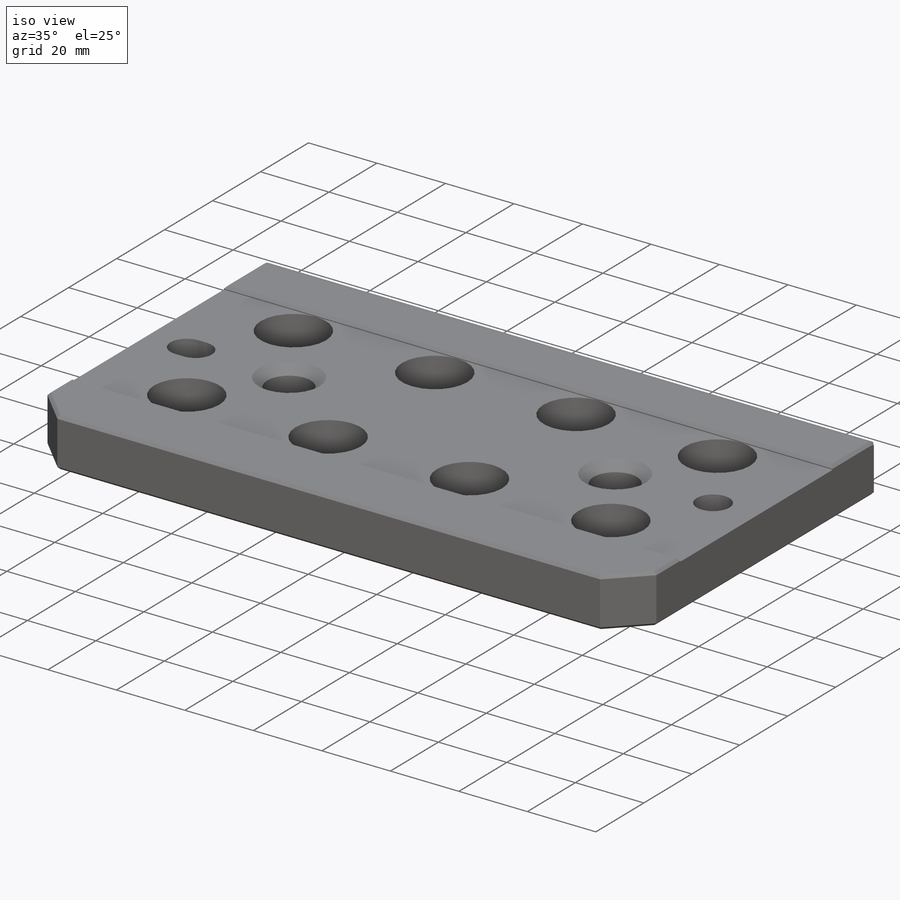
[diagram: iso view]
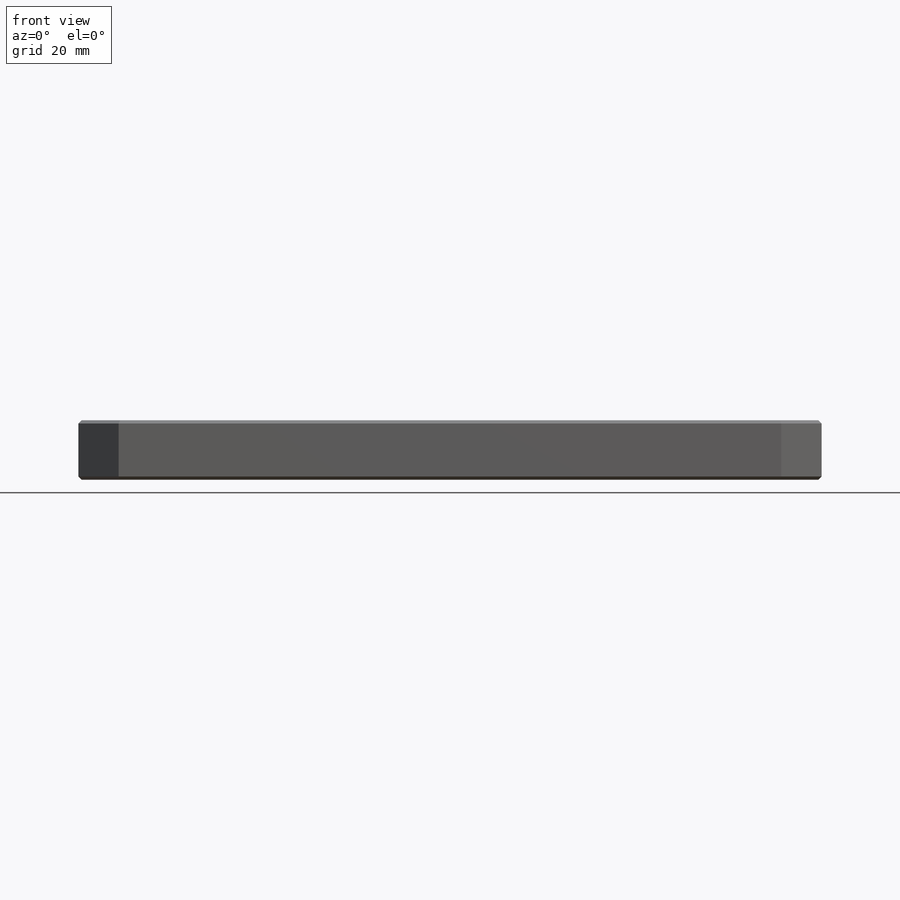
[diagram: front view]
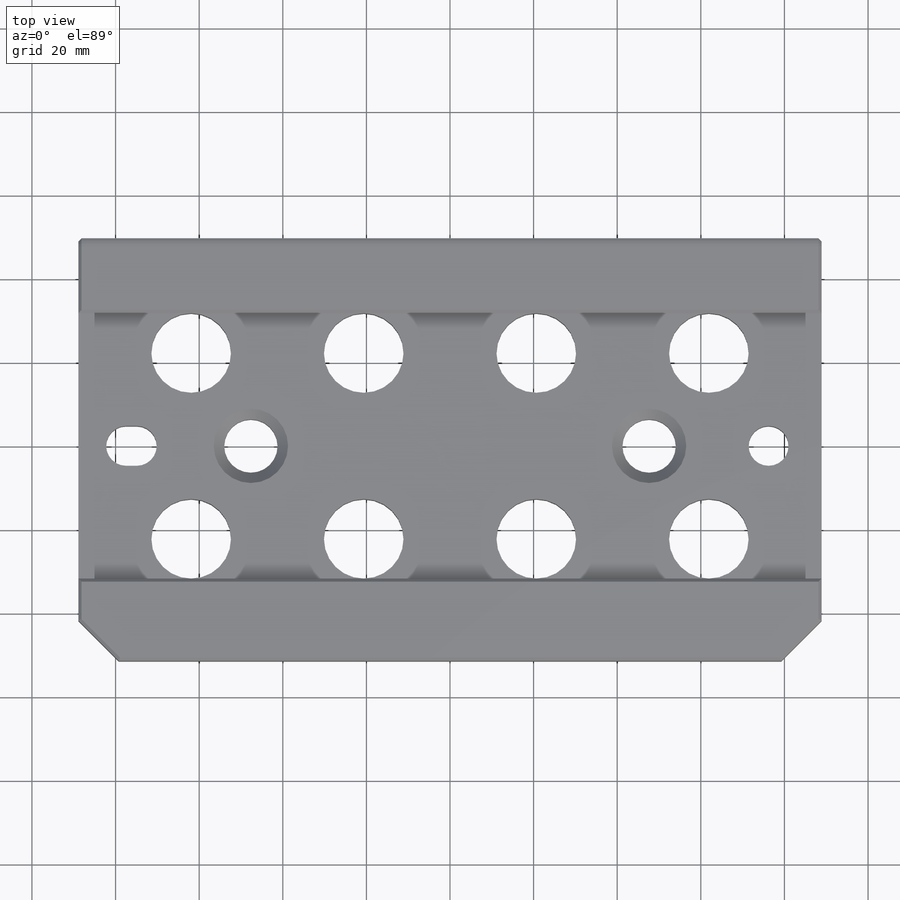
[diagram: top view]
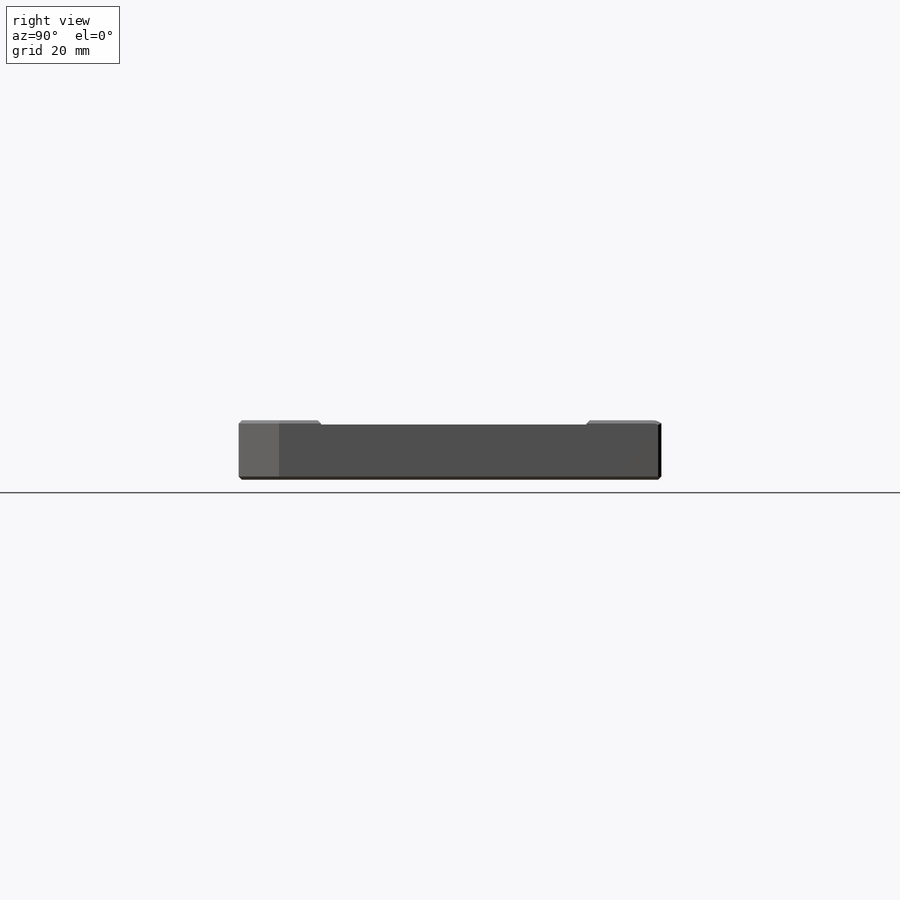
[diagram: right view]
SOLIDWORKS PART (.sldprt)
format: sldprt  version: not decoded by parser v0  size: 866,304 bytes
history: native  units: mm
features: sketch x23, chamfer x10, hole x7, cut_extrude x7, extrude x2, material x1 + 1 further entry (+13 scaffold rows collapsed)
feature tree (64):
  scaffold x13  (default folders/planes/origin — collapsed)
  material  "17-4 PH SSTL, H 1150"
  "Origin"  ID=-1
  sketch  "Sketch1"  dims[D1=18.5166mm D2=95.25mm D3=3.81mm]
  extrude  "Extrude1"  Depth=177.8mm
  sketch  "Sketch10"  dims[D1=0.762mm D2=2.032mm]
  extrude  "Extrude5"  [1 undecoded]
  hole  "3/4 (0.75) Diameter Hole1"  Diameter=19.05mm Depth=18.5166mm
  sketch  "Sketch5"  dims[c1.D1=41.275mm c1.D2=25.4mm c1.D3=44.45mm c2.D2=22.225mm]
  sketch  "Sketch4"  dims[hole-wizard template sketch: 60 standard entries collapsed; hole parameters kept: c18.Thru Hole Depth=18.5166mm]
  sketch  "Sketch6"  dims[c1.D1=15.875mm c1.D2=15.875mm c1.D3=25.4mm c2.D2=81.534mm c2.D1=31.75mm c3.D2=31.75mm]
  cut_extrude  "Extrude2"  Depth=1.016mm
  chamfer  "Chamfer10"  Distance=9.652mm Angle=45deg
  sketch  "Sketch35"  dims[D1=14.224mm]
  cut_extrude  "Extrude11"  [1 undecoded]
  hole  "3/8 (0.375) Diameter Hole1"  Diameter=9.54278mm Depth=14.224mm
  sketch  "Sketch18"  dims[D1=49.657mm D2=152.4mm]
  sketch  "Sketch17"  dims[hole-wizard template sketch: 55 standard entries collapsed; hole parameters kept: c17.Thru Hole Depth=14.224mm c17.Near C'Sink Dia.=14.224mm c17.D4=~3.666174mm c17.Near C'Sink Angle=90.0deg]
  sketch  "Sketch19"  dims[c1.D1=152.4mm c1.D2=2.54mm c2.D1=152.4mm]
  cut_extrude  "Extrude8"  [1 undecoded]
  chamfer  "Chamfer13"  Distance=2.286mm Angle=45deg
  hole  "1/2 (0.5) Diameter Hole4"  Diameter=12.7508mm Depth=13.208mm
  sketch  "Sketch27"  dims[D1=95.25mm D2=47.625mm D3=22.225mm]
  sketch  "Sketch26"  dims[hole-wizard template sketch: 46 standard entries collapsed; hole parameters kept: c15.Thru Hole Dia.=12.7508mm c15.Thru Hole Depth=13.208mm c15.Near C'Sink Dia.=17.78mm c15.D4=~3.666174mm c15.Near C'Sink Angle=90.0deg c15.Far C'Sink Dia.=17.78mm c15.D6=~9.919017mm c15.Far C'Sink Angle=90.0deg]
  sketch  "Sketch28"  dims[c1.D1=101.092mm c2.D1=1.01deg c2.D2=~11.68654mm]
  cut_extrude  "Extrude9"  [1 undecoded]
  hole  "3/8 (0.375) Diameter Hole2"  Diameter=9.54278mm Depth=11.720542mm
  sketch  "Sketch30"  dims[c1.D1=21.9075mm c1.D2=152.4mm c2.D1=22.5171mm]
  sketch  "Sketch29"  dims[hole-wizard template sketch: 55 standard entries collapsed; hole parameters kept: c17.Thru Hole Depth=~11.720542mm c17.Near C'Sink Dia.=14.224mm c17.D4=~3.666174mm c17.Near C'Sink Angle=90.0deg]
  sketch  "Sketch31"  dims[D1=2.54mm]
  cut_extrude  "Extrude10"  [1 undecoded]
  chamfer  "Chamfer14"  Distance=2.286mm Angle=45deg
  hole  "1/2 (0.5) Diameter Hole5"  Diameter=12.7mm Depth=10.706363mm
  sketch  "Sketch34"  dims[D1=95.25mm D2=22.225mm]
  sketch  "Sketch33"  dims[hole-wizard template sketch: 46 standard entries collapsed; hole parameters kept: c15.Thru Hole Dia.=12.7mm c15.Thru Hole Depth=~10.706363mm c15.Near C'Sink Dia.=13.97mm c15.D4=~3.666174mm c15.Near C'Sink Angle=90.0deg c15.Far C'Sink Dia.=19.05mm c15.D6=~9.919017mm c15.Far C'Sink Angle=90.0deg]
  sketch  "Sketch36"  dims[c1.D1=101.092mm c2.D1=1.01deg c2.D2=~16.76908mm]
  cut_extrude  "Extrude12"  [1 undecoded]
  hole  "3/8 (0.375) Diameter Hole3"  Diameter=9.54278mm Depth=18.512597mm
  sketch  "Sketch38"  dims[D1=152.4mm D2=~21.96846mm]
  sketch  "Sketch37"  dims[hole-wizard template sketch: 55 standard entries collapsed; hole parameters kept: c17.Thru Hole Depth=~18.512597mm c17.Near C'Sink Dia.=14.224mm c17.D4=~3.666174mm c17.Near C'Sink Angle=90.0deg]
  sketch  "Sketch39"  dims[D1=2.54mm]
  cut_extrude  "Extrude13"  [1 undecoded]
  chamfer  "Chamfer15"  Distance=2.286mm Angle=45deg
  hole  "1/2 (0.5) Diameter Hole6"  Diameter=12.7508mm Depth=17.499473mm
  sketch  "Sketch41"  dims[D1=95.25mm D2=22.225mm]
  sketch  "Sketch40"  dims[hole-wizard template sketch: 46 standard entries collapsed; hole parameters kept: c15.Thru Hole Dia.=12.7508mm c15.Thru Hole Depth=~17.499473mm c15.Near C'Sink Dia.=17.78mm c15.D4=~3.666174mm c15.Near C'Sink Angle=90.0deg c15.Far C'Sink Dia.=17.78mm c15.D6=~9.919017mm c15.Far C'Sink Angle=90.0deg]
  chamfer  "Chamfer16"  Distance=0.762mm Angle=45deg
  chamfer  "Chamfer19"  Distance=1.524mm Angle=45deg
  chamfer  "Chamfer17"  Distance=0.762mm Angle=45deg
  chamfer  "Chamfer20"  Distance=1.524mm Angle=45deg
  chamfer  "Chamfer18"  Distance=0.762mm Angle=45deg
  chamfer  "Chamfer21"  Distance=1.524mm Angle=45deg
decode coverage: 42 of 49 modeling features carry decoded parameters; 1 rows unclassified (native names shown)
note: ~ marks probable driven/reference dimensions
note: 7 parameter values undecoded
summary: no parameter record found for 7 features; Diameter pulled from absorbed wizard sketch
note: suppression state not decoded; provenance and decode notes live in map.json
